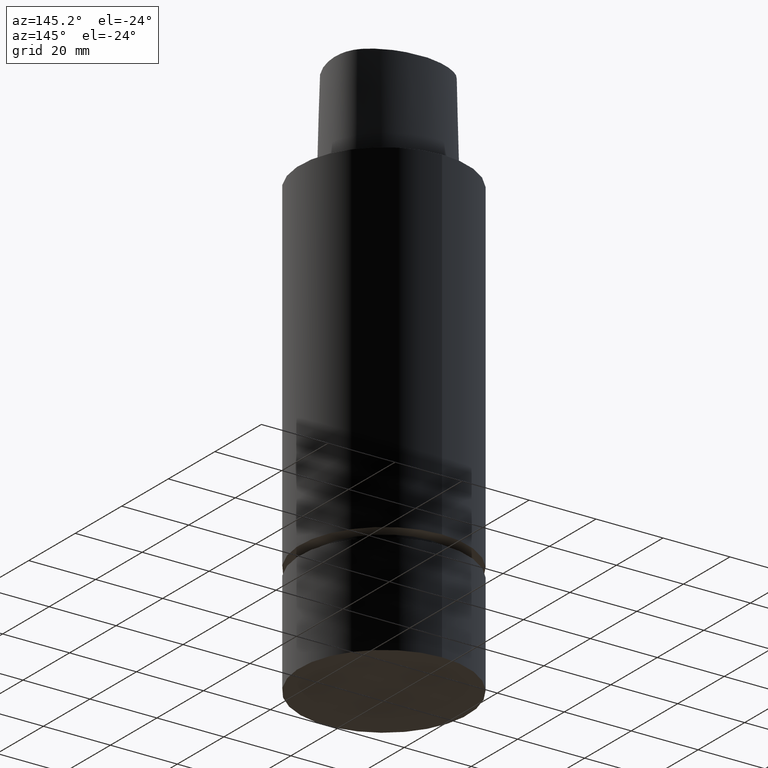
[diagram: clean part render]
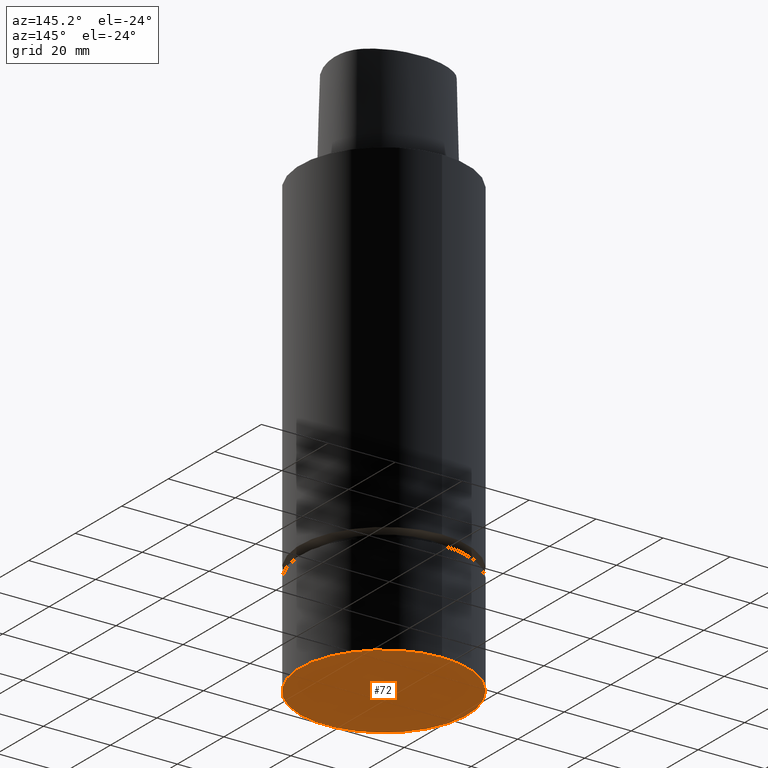
[diagram: same view with one face highlighted and labeled with its STEP entity id]
A machine part, auxiliary view. The second image highlights one B-rep face of the part: STEP entity #72.
In plain terms, the highlighted planar face has unit normal (0, 0, -1).
Its self-contained STEP definition (entity closure, byte-faithful):
#72=ADVANCED_FACE('Unnamed[1]',(#167),#168,.T.);
#121=EDGE_CURVE('Unnamed[1]',#237,#237,#238,.T.);
#167=FACE_OUTER_BOUND('',#284,.T.);
#168=PLANE('',#285);
#237=VERTEX_POINT('',#901);
#238=CIRCLE('',#902,25.0);
#284=EDGE_LOOP('',(#937));
#285=AXIS2_PLACEMENT_3D('',#938,#939,#940);
#901=CARTESIAN_POINT('',(8.26636589424463E-015,25.0,-135.0));
#902=AXIS2_PLACEMENT_3D('',#1003,#1004,#1005);
#937=ORIENTED_EDGE('',*,*,#121,.T.);
#938=CARTESIAN_POINT('',(8.26636589424463E-015,12.5,-135.0));
#939=DIRECTION('',(6.12323399573677E-017,1.22464679914735E-016,-1.0));
#940=DIRECTION('',(-1.23259516440783E-032,1.0,1.22464679914735E-016));
#1003=CARTESIAN_POINT('',(8.26636589424463E-015,1.65327317884893E-014,-135.0));
#1004=DIRECTION('',(6.12323399573677E-017,1.22464679914735E-016,-1.0));
#1005=DIRECTION('',(-1.23259516440783E-032,1.0,1.22464679914735E-016));